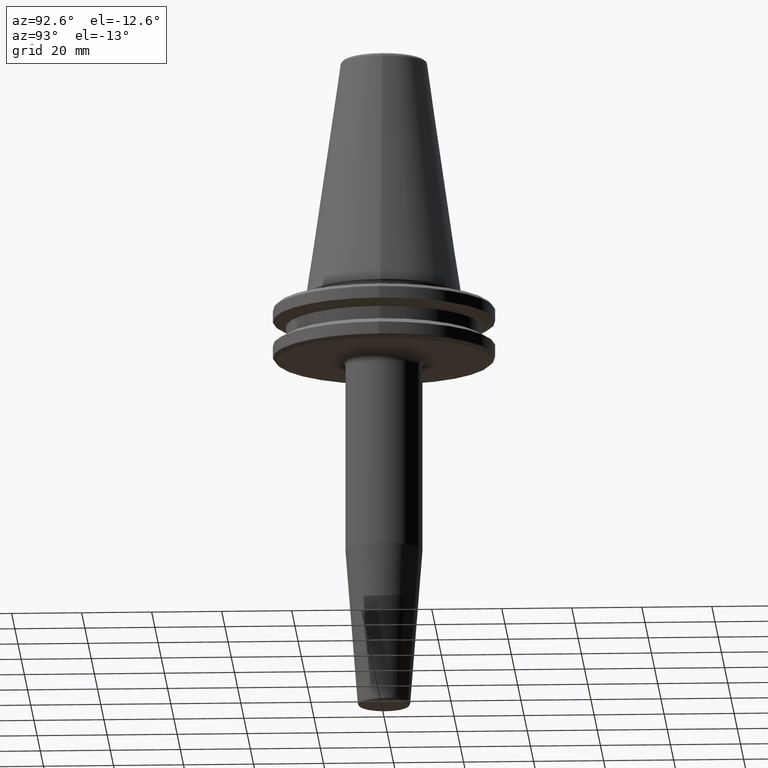
[diagram: clean part render]
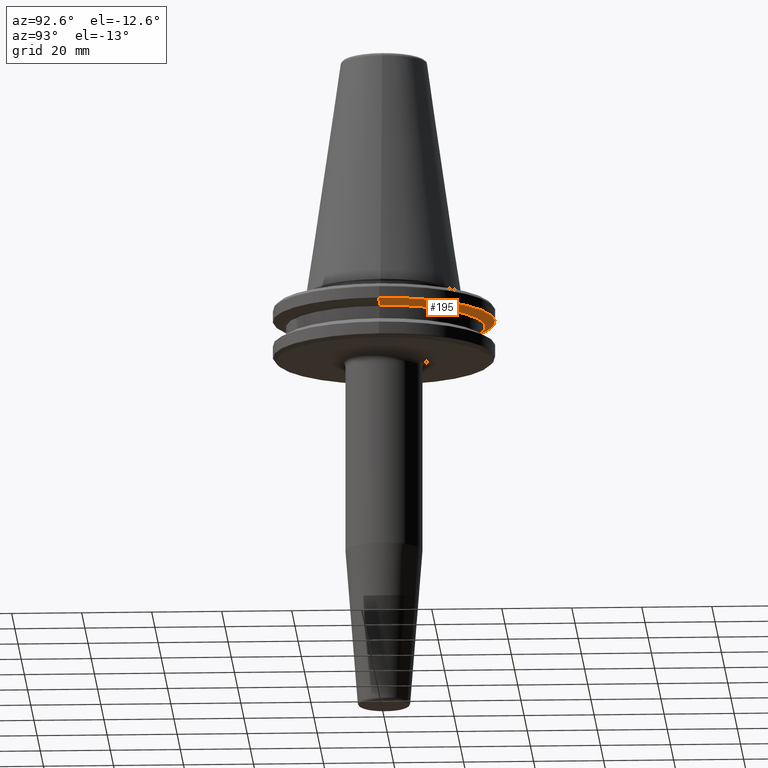
[diagram: same view with one face highlighted and labeled with its STEP entity id]
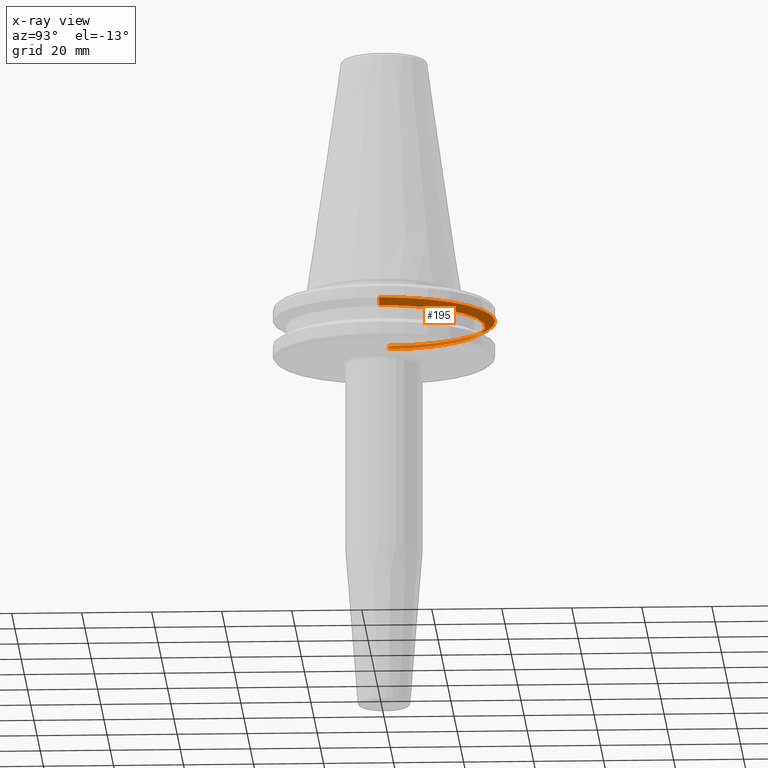
[diagram: x-ray of the same camera — body ghosted, the highlighted face saturated]
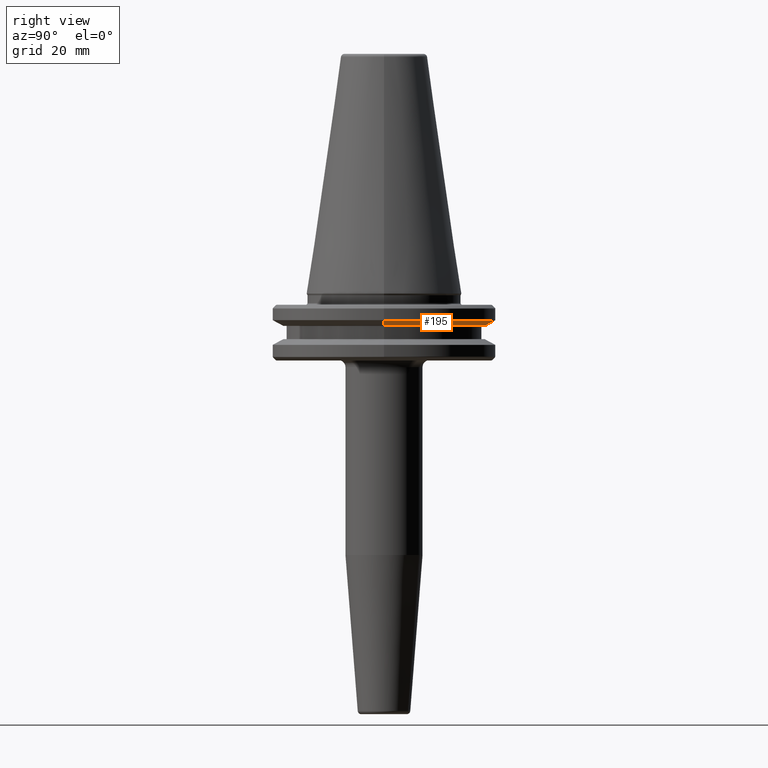
[diagram: same view with one face highlighted and labeled with its STEP entity id]
A machine part, auxiliary view. The second image highlights one B-rep face of the part: STEP entity #195.
The next image is the same camera in x-ray: the body ghosted, the highlighted face saturated — about 20% of this face is hidden behind the body in this view.
A second angle (right view) of the same face is appended — the face is thin or edge-on in the first view.
In plain terms, the highlighted conical surface has half-angle 60 deg.
Its self-contained STEP definition (entity closure, byte-faithful):
#32 = CIRCLE ( 'NONE', #1023, 28.94089653438084400 ) ;
#36 = DIRECTION ( 'NONE',  ( 1.000000000000000000, 0.0000000000000000000, 0.0000000000000000000 ) ) ;
#47 = EDGE_CURVE ( 'NONE', #331, #736, #404, .T. ) ;
#90 = LINE ( 'NONE', #313, #617 ) ;
#97 = ORIENTED_EDGE ( 'NONE', *, *, #608, .F. ) ;
#118 = AXIS2_PLACEMENT_3D ( 'NONE', #1142, #596, #1238 ) ;
#195 = ADVANCED_FACE ( 'NONE', ( #1245 ), #452, .T. ) ;
#207 = EDGE_LOOP ( 'NONE', ( #708, #836, #948, #97 ) ) ;
#239 = CARTESIAN_POINT ( 'NONE',  ( 31.75000000000000000, 0.0000000000000000000, -7.578163357943284800 ) ) ;
#303 = EDGE_CURVE ( 'NONE', #958, #736, #90, .T. ) ;
#313 = CARTESIAN_POINT ( 'NONE',  ( -31.75000000000000000, 3.888253587292846500E-015, -7.578163357943284800 ) ) ;
#331 = VERTEX_POINT ( 'NONE', #977 ) ;
#344 = EDGE_CURVE ( 'NONE', #568, #958, #32, .T. ) ;
#404 = CIRCLE ( 'NONE', #118, 31.75000000000000000 ) ;
#451 = VECTOR ( 'NONE', #634, 1000.000000000000000 ) ;
#452 = CONICAL_SURFACE ( 'NONE', #745, 31.75000000000000000, 1.047197551196598500 ) ;
#536 = DIRECTION ( 'NONE',  ( -0.0000000000000000000, -0.0000000000000000000, 1.000000000000000000 ) ) ;
#568 = VERTEX_POINT ( 'NONE', #577 ) ;
#577 = CARTESIAN_POINT ( 'NONE',  ( 28.94089653438084400, 0.0000000000000000000, -9.200000000000013500 ) ) ;
#596 = DIRECTION ( 'NONE',  ( -0.0000000000000000000, -0.0000000000000000000, 1.000000000000000000 ) ) ;
#608 = EDGE_CURVE ( 'NONE', #568, #331, #1213, .T. ) ;
#617 = VECTOR ( 'NONE', #1080, 1000.000000000000000 ) ;
#631 = DIRECTION ( 'NONE',  ( 1.000000000000000000, 0.0000000000000000000, 0.0000000000000000000 ) ) ;
#634 = DIRECTION ( 'NONE',  ( 0.8660254037844390400, 0.0000000000000000000, 0.4999999999999993300 ) ) ;
#708 = ORIENTED_EDGE ( 'NONE', *, *, #344, .T. ) ;
#736 = VERTEX_POINT ( 'NONE', #932 ) ;
#745 = AXIS2_PLACEMENT_3D ( 'NONE', #887, #994, #36 ) ;
#836 = ORIENTED_EDGE ( 'NONE', *, *, #303, .T. ) ;
#887 = CARTESIAN_POINT ( 'NONE',  ( 0.0000000000000000000, 0.0000000000000000000, -7.578163357943284800 ) ) ;
#905 = CARTESIAN_POINT ( 'NONE',  ( 0.0000000000000000000, 0.0000000000000000000, -9.200000000000013500 ) ) ;
#932 = CARTESIAN_POINT ( 'NONE',  ( -31.75000000000000000, 3.888253587292846500E-015, -7.578163357943284800 ) ) ;
#948 = ORIENTED_EDGE ( 'NONE', *, *, #47, .F. ) ;
#958 = VERTEX_POINT ( 'NONE', #1220 ) ;
#977 = CARTESIAN_POINT ( 'NONE',  ( 31.75000000000000000, 0.0000000000000000000, -7.578163357943284800 ) ) ;
#994 = DIRECTION ( 'NONE',  ( -0.0000000000000000000, -0.0000000000000000000, 1.000000000000000000 ) ) ;
#1023 = AXIS2_PLACEMENT_3D ( 'NONE', #905, #536, #631 ) ;
#1080 = DIRECTION ( 'NONE',  ( -0.8660254037844390400, 1.060575238724907400E-016, 0.4999999999999993300 ) ) ;
#1142 = CARTESIAN_POINT ( 'NONE',  ( 0.0000000000000000000, 0.0000000000000000000, -7.578163357943284800 ) ) ;
#1213 = LINE ( 'NONE', #239, #451 ) ;
#1220 = CARTESIAN_POINT ( 'NONE',  ( -28.94089653438084400, 3.716245608910634800E-015, -9.200000000000013500 ) ) ;
#1238 = DIRECTION ( 'NONE',  ( 1.000000000000000000, 0.0000000000000000000, 0.0000000000000000000 ) ) ;
#1245 = FACE_OUTER_BOUND ( 'NONE', #207, .T. ) ;